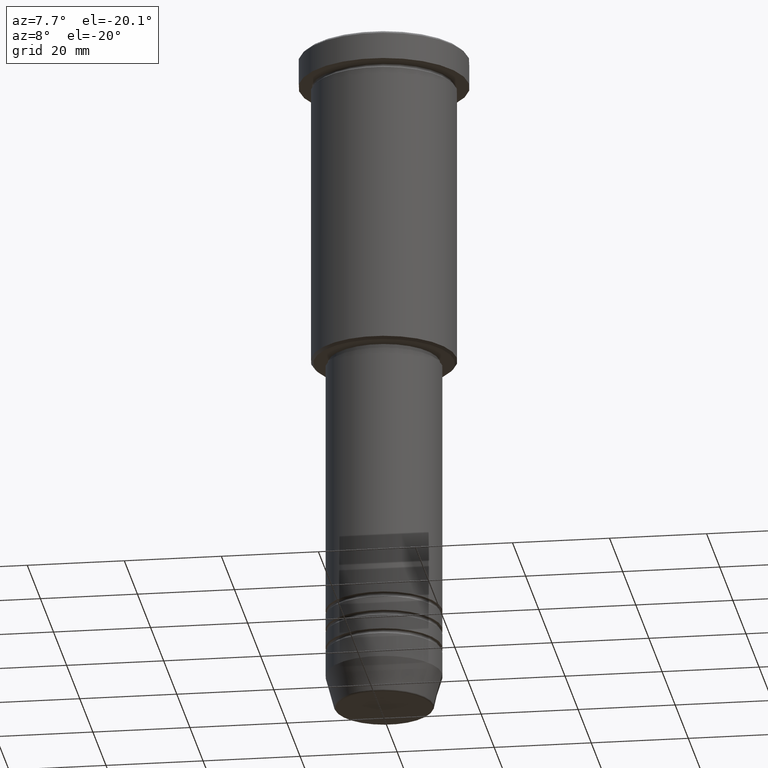
[diagram: clean part render]
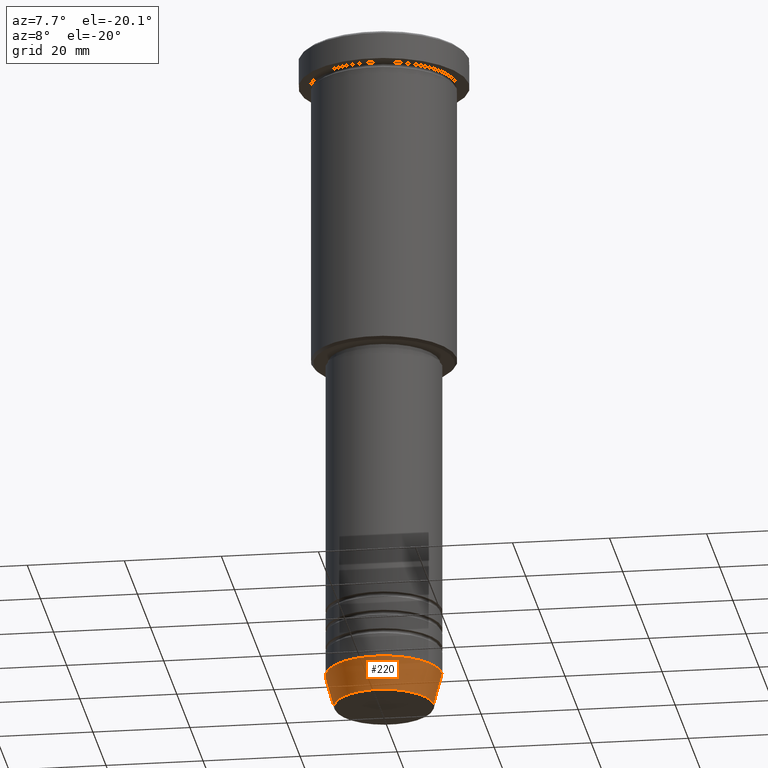
[diagram: same view with one face highlighted and labeled with its STEP entity id]
A machine part, auxiliary view. The second image highlights one B-rep face of the part: STEP entity #220.
In plain terms, the highlighted conical surface has half-angle 15 deg.
Its self-contained STEP definition (entity closure, byte-faithful):
#23 = LINE ( 'NONE', #568, #826 ) ;
#33 = AXIS2_PLACEMENT_3D ( 'NONE', #876, #708, #701 ) ;
#111 = EDGE_CURVE ( 'NONE', #230, #478, #1006, .T. ) ;
#119 = CIRCLE ( 'NONE', #465, 10.22365507213719127 ) ;
#214 = ORIENTED_EDGE ( 'NONE', *, *, #837, .T. ) ;
#220 = ADVANCED_FACE ( 'NONE', ( #1088 ), #1161, .T. ) ;
#230 = VERTEX_POINT ( 'NONE', #639 ) ;
#235 = VERTEX_POINT ( 'NONE', #733 ) ;
#294 = DIRECTION ( 'NONE',  ( -0.2588190451025213501, 3.169619151431772337E-17, 0.9659258262890680902 ) ) ;
#316 = DIRECTION ( 'NONE',  ( -0.000000000000000000, -0.000000000000000000, 1.000000000000000000 ) ) ;
#354 = DIRECTION ( 'NONE',  ( 0.2588190451025213501, 0.000000000000000000, 0.9659258262890680902 ) ) ;
#384 = VERTEX_POINT ( 'NONE', #627 ) ;
#402 = ORIENTED_EDGE ( 'NONE', *, *, #111, .F. ) ;
#450 = ORIENTED_EDGE ( 'NONE', *, *, #481, .F. ) ;
#465 = AXIS2_PLACEMENT_3D ( 'NONE', #940, #316, #1029 ) ;
#471 = EDGE_LOOP ( 'NONE', ( #450, #1025, #214, #402 ) ) ;
#478 = VERTEX_POINT ( 'NONE', #738 ) ;
#481 = EDGE_CURVE ( 'NONE', #235, #230, #23, .T. ) ;
#550 = DIRECTION ( 'NONE',  ( 1.000000000000000000, 0.000000000000000000, 0.000000000000000000 ) ) ;
#559 = DIRECTION ( 'NONE',  ( -0.000000000000000000, -0.000000000000000000, 1.000000000000000000 ) ) ;
#568 = CARTESIAN_POINT ( 'NONE',  ( -12.00000000000000000, 1.469576158976823947E-15, -134.0000000000000000 ) ) ;
#627 = CARTESIAN_POINT ( 'NONE',  ( 10.22365507213719127, 0.000000000000000000, -140.6294095225512706 ) ) ;
#639 = CARTESIAN_POINT ( 'NONE',  ( -12.00000000000000000, 1.469576158976823947E-15, -134.0000000000000000 ) ) ;
#701 = DIRECTION ( 'NONE',  ( 1.000000000000000000, 0.000000000000000000, 0.000000000000000000 ) ) ;
#708 = DIRECTION ( 'NONE',  ( -0.000000000000000000, -0.000000000000000000, 1.000000000000000000 ) ) ;
#720 = CARTESIAN_POINT ( 'NONE',  ( 0.000000000000000000, 0.000000000000000000, -134.0000000000000000 ) ) ;
#723 = AXIS2_PLACEMENT_3D ( 'NONE', #720, #559, #550 ) ;
#733 = CARTESIAN_POINT ( 'NONE',  ( -10.22365507213719127, 1.360806402472382744E-15, -140.6294095225512706 ) ) ;
#738 = CARTESIAN_POINT ( 'NONE',  ( 12.00000000000000000, 0.000000000000000000, -134.0000000000000000 ) ) ;
#826 = VECTOR ( 'NONE', #294, 1000.000000000000000 ) ;
#837 = EDGE_CURVE ( 'NONE', #384, #478, #1066, .T. ) ;
#865 = VECTOR ( 'NONE', #354, 1000.000000000000000 ) ;
#876 = CARTESIAN_POINT ( 'NONE',  ( 0.000000000000000000, 0.000000000000000000, -134.0000000000000000 ) ) ;
#940 = CARTESIAN_POINT ( 'NONE',  ( 0.000000000000000000, 0.000000000000000000, -140.6294095225512706 ) ) ;
#977 = CARTESIAN_POINT ( 'NONE',  ( 12.00000000000000000, 0.000000000000000000, -134.0000000000000000 ) ) ;
#1006 = CIRCLE ( 'NONE', #33, 12.00000000000000000 ) ;
#1009 = EDGE_CURVE ( 'NONE', #235, #384, #119, .T. ) ;
#1025 = ORIENTED_EDGE ( 'NONE', *, *, #1009, .T. ) ;
#1029 = DIRECTION ( 'NONE',  ( 1.000000000000000000, 0.000000000000000000, 0.000000000000000000 ) ) ;
#1066 = LINE ( 'NONE', #977, #865 ) ;
#1088 = FACE_OUTER_BOUND ( 'NONE', #471, .T. ) ;
#1161 = CONICAL_SURFACE ( 'NONE', #723, 12.00000000000000000, 0.2617993877991500740 ) ;